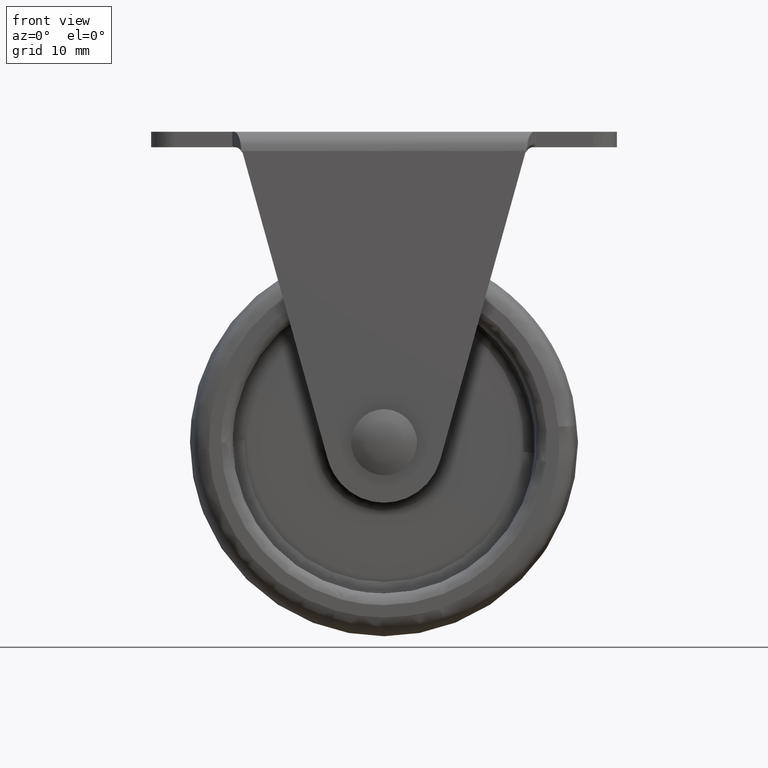
[diagram: clean part render]
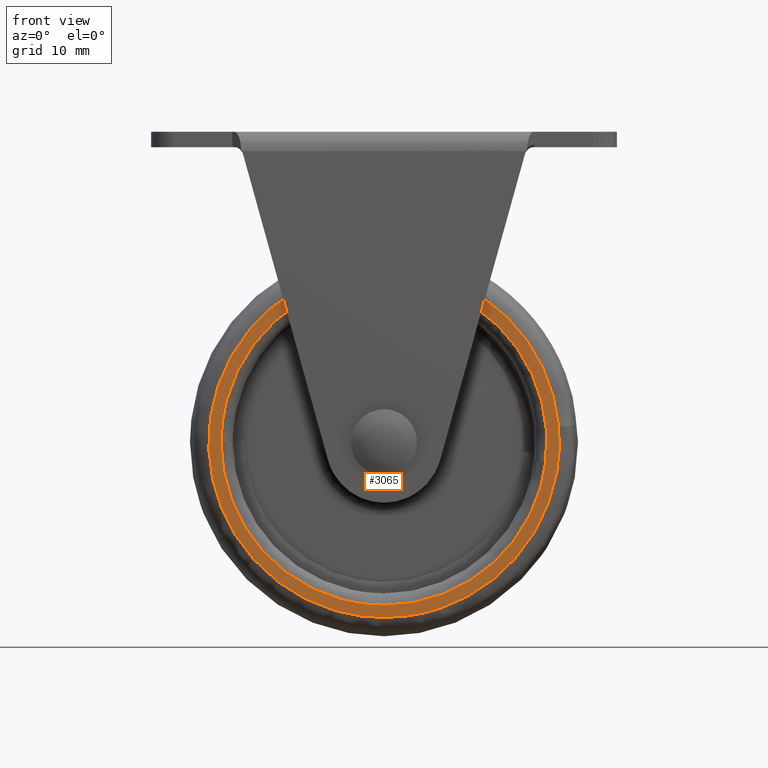
[diagram: same view with one face highlighted and labeled with its STEP entity id]
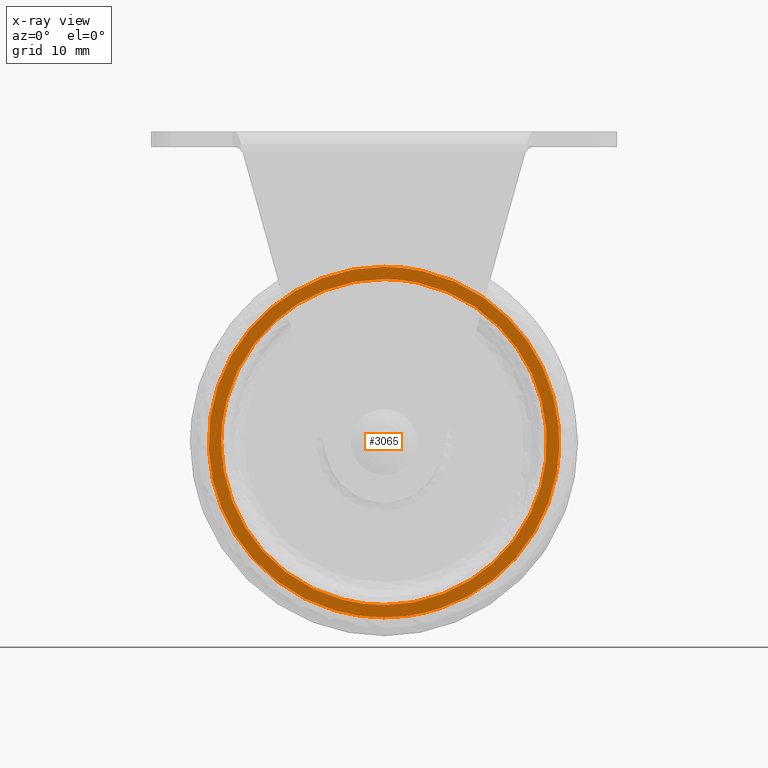
[diagram: x-ray of the same camera — body ghosted, the highlighted face saturated]
A machine part, front view. The second image highlights one B-rep face of the part: STEP entity #3065.
The next image is the same camera in x-ray: the body ghosted, the highlighted face saturated — about 0% of this face is hidden behind the body in this view.
In plain terms, the highlighted face is a freeform B-spline surface patch.
Its self-contained STEP definition (entity closure, byte-faithful):
#1712=CARTESIAN_POINT('',(20.859544414459361,-11.0,-42.424748815875887));
#1713=VERTEX_POINT('',#1712);
#1727=CARTESIAN_POINT('',(0.0,-11.0,-19.0));
#1728=VERTEX_POINT('',#1727);
#1729=CARTESIAN_POINT('',(20.859544414459357,-10.999999999999996,-42.424748815875901));
#1730=CARTESIAN_POINT('',(21.000000000000004,-10.999999999999996,-41.216442411065898));
#1731=CARTESIAN_POINT('',(21.0,-11.0,-40.0));
#1732=CARTESIAN_POINT('',(21.000000000000007,-11.0,-18.999999999999996));
#1733=CARTESIAN_POINT('',(0.0,-11.0,-19.0));
#1741=(BOUNDED_CURVE()B_SPLINE_CURVE(2,(#1729,#1730,#1731,#1732,#1733),.UNSPECIFIED.,.F.,.U.)B_SPLINE_CURVE_WITH_KNOTS((3,2,3),(0.229999999999832,0.250000000000000,0.500000000000000),.UNSPECIFIED.)CURVE()GEOMETRIC_REPRESENTATION_ITEM()RATIONAL_B_SPLINE_CURVE((0.956886118190328,0.976568542494727,1.0,0.707106781186547,1.0))REPRESENTATION_ITEM(''));
#1742=EDGE_CURVE('',#1713,#1728,#1741,.T.);
#1744=CARTESIAN_POINT('',(-20.999999999586869,-11.0,-40.0));
#1745=VERTEX_POINT('',#1744);
#1746=CARTESIAN_POINT('',(0.0,-11.0,-19.0));
#1747=CARTESIAN_POINT('',(-20.999999999999904,-11.0,-19.0));
#1748=CARTESIAN_POINT('',(-20.999999999586873,-11.000000000000002,-40.0));
#1756=(BOUNDED_CURVE()B_SPLINE_CURVE(2,(#1746,#1747,#1748),.UNSPECIFIED.,.F.,.U.)B_SPLINE_CURVE_WITH_KNOTS((3,3),(0.500000000000000,0.749999999999999),.UNSPECIFIED.)CURVE()GEOMETRIC_REPRESENTATION_ITEM()RATIONAL_B_SPLINE_CURVE((1.0,0.707106781186548,0.999999999999998))REPRESENTATION_ITEM(''));
#1757=EDGE_CURVE('',#1728,#1745,#1756,.T.);
#1802=CARTESIAN_POINT('',(0.0,-11.0,-61.0));
#1803=VERTEX_POINT('',#1802);
#1804=CARTESIAN_POINT('',(-20.999999999586869,-11.0,-40.0));
#1805=CARTESIAN_POINT('',(-21.000000000000007,-11.0,-60.999999999999993));
#1806=CARTESIAN_POINT('',(0.0,-11.0,-61.0));
#1814=(BOUNDED_CURVE()B_SPLINE_CURVE(2,(#1804,#1805,#1806),.UNSPECIFIED.,.F.,.U.)B_SPLINE_CURVE_WITH_KNOTS((3,3),(0.750000000000000,1.0),.UNSPECIFIED.)CURVE()GEOMETRIC_REPRESENTATION_ITEM()RATIONAL_B_SPLINE_CURVE((1.0,0.707106781186547,1.0))REPRESENTATION_ITEM(''));
#1815=EDGE_CURVE('',#1745,#1803,#1814,.T.);
#1817=CARTESIAN_POINT('',(0.0,-11.0,-61.0));
#1818=CARTESIAN_POINT('',(18.700325717347081,-11.0,-61.0));
#1819=CARTESIAN_POINT('',(20.859544414459357,-10.999999999999998,-42.424748815875908));
#1827=(BOUNDED_CURVE()B_SPLINE_CURVE(2,(#1817,#1818,#1819),.UNSPECIFIED.,.F.,.U.)B_SPLINE_CURVE_WITH_KNOTS((3,3),(0.0,0.229999999999832),.UNSPECIFIED.)CURVE()GEOMETRIC_REPRESENTATION_ITEM()RATIONAL_B_SPLINE_CURVE((1.0,0.730538238691821,0.956886118190328))REPRESENTATION_ITEM(''));
#1828=EDGE_CURVE('',#1803,#1713,#1827,.T.);
#1851=CARTESIAN_POINT('',(7.195987915017812,-11.0,-61.408848951936669));
#1852=VERTEX_POINT('',#1851);
#1853=CARTESIAN_POINT('',(22.498533873588219,-11.0,-38.015805205800760));
#1854=VERTEX_POINT('',#1853);
#1855=CARTESIAN_POINT('',(7.195987915017812,-11.0,-61.408848951936676));
#1856=CARTESIAN_POINT('',(22.585859631403647,-11.0,-56.235972481505108));
#1857=CARTESIAN_POINT('',(22.585859631403650,-11.0,-40.0));
#1858=CARTESIAN_POINT('',(22.585859631403650,-11.000000000000004,-39.005980969925702));
#1859=CARTESIAN_POINT('',(22.498533873588226,-10.999999999999996,-38.015805205800767));
#1867=(BOUNDED_CURVE()B_SPLINE_CURVE(2,(#1855,#1856,#1857,#1858,#1859),.UNSPECIFIED.,.F.,.U.)B_SPLINE_CURVE_WITH_KNOTS((3,2,3),(0.054159555260418,0.250000000000000,0.265281545146327),.UNSPECIFIED.)CURVE()GEOMETRIC_REPRESENTATION_ITEM()RATIONAL_B_SPLINE_CURVE((0.900588466933735,0.770558647065463,1.0,0.982096556214597,0.966381850705045))REPRESENTATION_ITEM(''));
#1868=EDGE_CURVE('',#1852,#1854,#1867,.T.);
#1953=CARTESIAN_POINT('',(0.0,-11.0,-62.585859631403643));
#1954=VERTEX_POINT('',#1953);
#1955=CARTESIAN_POINT('',(0.0,-11.0,-62.585859631403643));
#1956=CARTESIAN_POINT('',(3.694252744840811,-10.999999999999998,-62.585859631403636));
#1957=CARTESIAN_POINT('',(7.195987915017812,-11.0,-61.408848951936676));
#1965=(BOUNDED_CURVE()B_SPLINE_CURVE(2,(#1955,#1956,#1957),.UNSPECIFIED.,.F.,.U.)B_SPLINE_CURVE_WITH_KNOTS((3,3),(0.0,0.054159555260418),.UNSPECIFIED.)CURVE()GEOMETRIC_REPRESENTATION_ITEM()RATIONAL_B_SPLINE_CURVE((1.0,0.936548134121085,0.900588466933735))REPRESENTATION_ITEM(''));
#1966=EDGE_CURVE('',#1954,#1852,#1965,.T.);
#1968=CARTESIAN_POINT('',(0.0,-11.0,-17.414140368596350));
#1969=VERTEX_POINT('',#1968);
#1970=CARTESIAN_POINT('',(0.0,-11.0,-17.414140368596350));
#1971=CARTESIAN_POINT('',(-22.585859631403650,-11.0,-17.414140368596357));
#1972=CARTESIAN_POINT('',(-22.585859631403650,-11.0,-40.0));
#1973=CARTESIAN_POINT('',(-22.585859631403650,-11.0,-62.585859631403650));
#1974=CARTESIAN_POINT('',(0.0,-11.0,-62.585859631403643));
#1982=(BOUNDED_CURVE()B_SPLINE_CURVE(2,(#1970,#1971,#1972,#1973,#1974),.UNSPECIFIED.,.F.,.U.)B_SPLINE_CURVE_WITH_KNOTS((3,2,3),(0.500000000000000,0.750000000000000,1.0),.UNSPECIFIED.)CURVE()GEOMETRIC_REPRESENTATION_ITEM()RATIONAL_B_SPLINE_CURVE((1.0,0.707106781186548,1.0,0.707106781186548,1.0))REPRESENTATION_ITEM(''));
#1983=EDGE_CURVE('',#1969,#1954,#1982,.T.);
#1985=CARTESIAN_POINT('',(22.498533873588226,-10.999999999999996,-38.015805205800767));
#1986=CARTESIAN_POINT('',(20.681628095142212,-11.0,-17.414140368596353));
#1987=CARTESIAN_POINT('',(0.0,-11.0,-17.414140368596350));
#1995=(BOUNDED_CURVE()B_SPLINE_CURVE(2,(#1985,#1986,#1987),.UNSPECIFIED.,.F.,.U.)B_SPLINE_CURVE_WITH_KNOTS((3,3),(0.265281545146327,0.500000000000000),.UNSPECIFIED.)CURVE()GEOMETRIC_REPRESENTATION_ITEM()RATIONAL_B_SPLINE_CURVE((0.966381850705045,0.725010224971951,1.0))REPRESENTATION_ITEM(''));
#1996=EDGE_CURVE('',#1854,#1969,#1995,.T.);
#3048=CARTESIAN_POINT('',(-24.842186297420358,-11.0,-64.842188617188441));
#3049=CARTESIAN_POINT('',(-24.842186297420358,-11.0,-15.157811786678201));
#3050=CARTESIAN_POINT('',(24.842175024022509,-11.0,-64.842188617188441));
#3051=CARTESIAN_POINT('',(24.842175024022509,-11.0,-15.157811786678201));
#3052=B_SPLINE_SURFACE_WITH_KNOTS('',1,1,((#3048,#3050),(#3049,#3051)),.UNSPECIFIED.,.F.,.F.,.U.,(2,2),(2,2),(0.0,49.684376830510239),(0.0,49.684361321442879),.UNSPECIFIED.);
#3053=ORIENTED_EDGE('',*,*,#1966,.T.);
#3054=ORIENTED_EDGE('',*,*,#1868,.T.);
#3055=ORIENTED_EDGE('',*,*,#1996,.T.);
#3056=ORIENTED_EDGE('',*,*,#1983,.T.);
#3057=EDGE_LOOP('',(#3053,#3054,#3055,#3056));
#3058=FACE_OUTER_BOUND('',#3057,.T.);
#3059=ORIENTED_EDGE('',*,*,#1757,.F.);
#3060=ORIENTED_EDGE('',*,*,#1742,.F.);
#3061=ORIENTED_EDGE('',*,*,#1828,.F.);
#3062=ORIENTED_EDGE('',*,*,#1815,.F.);
#3063=EDGE_LOOP('',(#3059,#3060,#3061,#3062));
#3064=FACE_BOUND('',#3063,.T.);
#3065=ADVANCED_FACE('',(#3058,#3064),#3052,.F.);